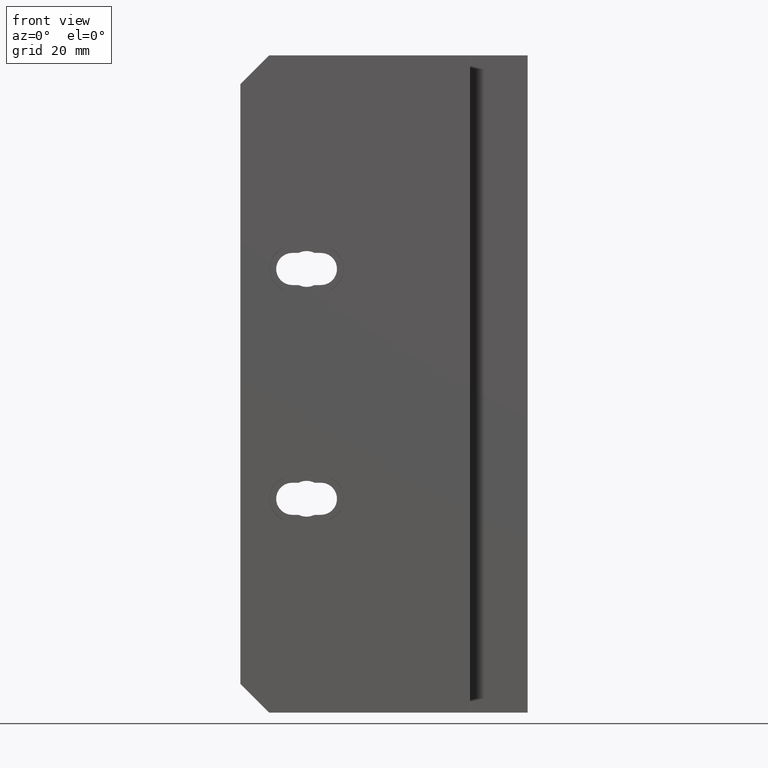
[diagram: clean part render]
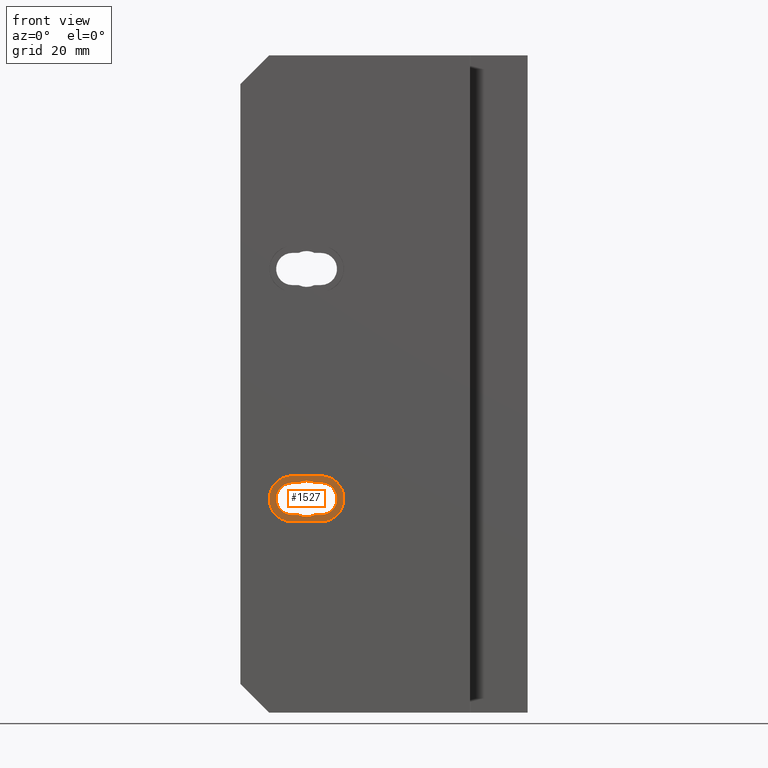
[diagram: same view with one face highlighted and labeled with its STEP entity id]
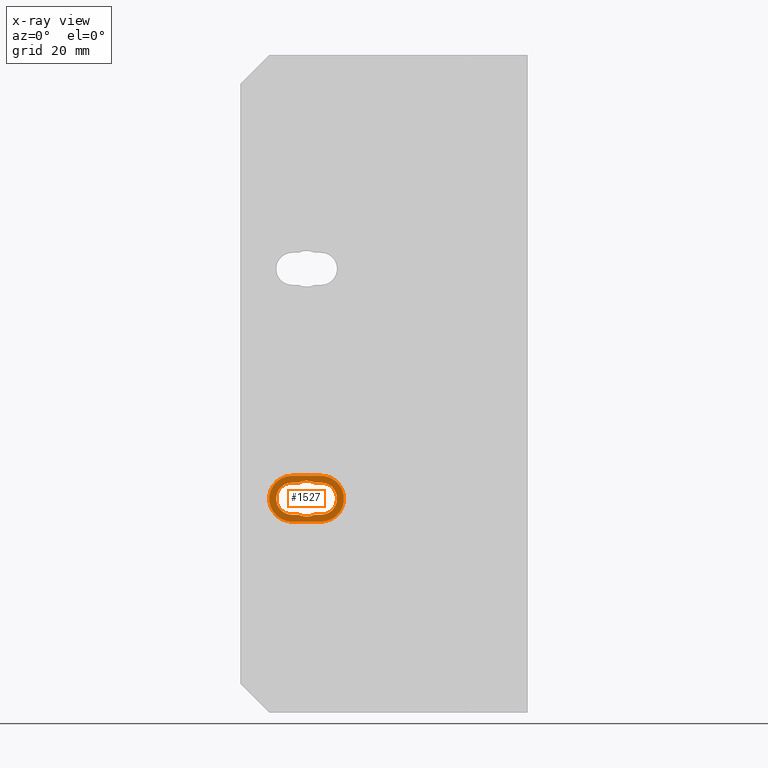
[diagram: x-ray of the same camera — body ghosted, the highlighted face saturated]
A machine part, front view. The second image highlights one B-rep face of the part: STEP entity #1527.
The next image is the same camera in x-ray: the body ghosted, the highlighted face saturated — about 0% of this face is hidden behind the body in this view.
In plain terms, the highlighted planar face has unit normal (0, -1, 0).
Its self-contained STEP definition (entity closure, byte-faithful):
#109 = CIRCLE ( 'NONE', #2467, 0.1562499999999997200 ) ;
#129 = EDGE_CURVE ( 'NONE', #1403, #721, #1073, .T. ) ;
#157 = VERTEX_POINT ( 'NONE', #3232 ) ;
#187 = LINE ( 'NONE', #4050, #2620 ) ;
#201 = PLANE ( 'NONE',  #1438 ) ;
#204 = VECTOR ( 'NONE', #1653, 39.37007874015748100 ) ;
#342 = VERTEX_POINT ( 'NONE', #2900 ) ;
#360 = EDGE_LOOP ( 'NONE', ( #1812, #2740, #3730, #722 ) ) ;
#431 = CARTESIAN_POINT ( 'NONE',  ( -2.048734939028663800, 0.7000000000000000700, -3.998999999999444600 ) ) ;
#502 = VERTEX_POINT ( 'NONE', #1445 ) ;
#515 = DIRECTION ( 'NONE',  ( 0.0000000000000000000, -1.000000000000000000, 0.0000000000000000000 ) ) ;
#531 = DIRECTION ( 'NONE',  ( 0.0000000000000000000, -1.000000000000000000, 0.0000000000000000000 ) ) ;
#642 = AXIS2_PLACEMENT_3D ( 'NONE', #3809, #1826, #4148 ) ;
#645 = DIRECTION ( 'NONE',  ( -0.0000000000000000000, 1.000000000000000000, -0.0000000000000000000 ) ) ;
#671 = EDGE_CURVE ( 'NONE', #2621, #2638, #2574, .T. ) ;
#678 = LINE ( 'NONE', #2452, #2332 ) ;
#721 = VERTEX_POINT ( 'NONE', #4069 ) ;
#722 = ORIENTED_EDGE ( 'NONE', *, *, #129, .T. ) ;
#809 = CARTESIAN_POINT ( 'NONE',  ( -1.798734939028664200, 0.7000000000000000700, -3.858999999999444400 ) ) ;
#834 = CIRCLE ( 'NONE', #3294, 0.2000000000000000400 ) ;
#852 = FACE_BOUND ( 'NONE', #3920, .T. ) ;
#861 = EDGE_CURVE ( 'NONE', #342, #1403, #2476, .T. ) ;
#864 = VERTEX_POINT ( 'NONE', #2297 ) ;
#956 = ORIENTED_EDGE ( 'NONE', *, *, #2977, .T. ) ;
#958 = CARTESIAN_POINT ( 'NONE',  ( -2.048734939028663800, 0.7000000000000000700, -3.998999999999444600 ) ) ;
#974 = CARTESIAN_POINT ( 'NONE',  ( -1.854351493596775500, 0.7000000000000000700, -3.718999999999444300 ) ) ;
#982 = DIRECTION ( 'NONE',  ( 0.0000000000000000000, -1.000000000000000000, 0.0000000000000000000 ) ) ;
#1012 = EDGE_CURVE ( 'NONE', #502, #2638, #1525, .T. ) ;
#1050 = ORIENTED_EDGE ( 'NONE', *, *, #3854, .T. ) ;
#1073 = LINE ( 'NONE', #2982, #204 ) ;
#1086 = EDGE_CURVE ( 'NONE', #2621, #1687, #1428, .T. ) ;
#1145 = DIRECTION ( 'NONE',  ( 0.0000000000000000000, 0.0000000000000000000, -1.000000000000000000 ) ) ;
#1157 = EDGE_CURVE ( 'NONE', #2356, #3482, #2092, .T. ) ;
#1158 = AXIS2_PLACEMENT_3D ( 'NONE', #2082, #4080, #1759 ) ;
#1170 = CARTESIAN_POINT ( 'NONE',  ( -2.048734939028663800, 0.7000000000000000700, -3.858999999999444400 ) ) ;
#1296 = ORIENTED_EDGE ( 'NONE', *, *, #2999, .T. ) ;
#1308 = CARTESIAN_POINT ( 'NONE',  ( -2.048734939028663800, 0.7000000000000000700, -3.858999999999444400 ) ) ;
#1385 = ORIENTED_EDGE ( 'NONE', *, *, #4001, .F. ) ;
#1403 = VERTEX_POINT ( 'NONE', #1437 ) ;
#1428 = LINE ( 'NONE', #431, #2987 ) ;
#1437 = CARTESIAN_POINT ( 'NONE',  ( -1.798734939028664200, 0.7000000000000000700, -3.658999999999444300 ) ) ;
#1438 = AXIS2_PLACEMENT_3D ( 'NONE', #1170, #531, #2852 ) ;
#1445 = CARTESIAN_POINT ( 'NONE',  ( -1.798734939028664200, 0.7000000000000000700, -3.998999999999444600 ) ) ;
#1525 = LINE ( 'NONE', #3063, #3095 ) ;
#1527 = ADVANCED_FACE ( 'NONE', ( #852, #1730 ), #201, .T. ) ;
#1600 = AXIS2_PLACEMENT_3D ( 'NONE', #2972, #982, #3301 ) ;
#1634 = DIRECTION ( 'NONE',  ( 0.0000000000000000000, 0.0000000000000000000, -1.000000000000000000 ) ) ;
#1653 = DIRECTION ( 'NONE',  ( -1.000000000000000000, -0.0000000000000000000, -0.0000000000000000000 ) ) ;
#1687 = VERTEX_POINT ( 'NONE', #958 ) ;
#1695 = LINE ( 'NONE', #2302, #3368 ) ;
#1730 = FACE_OUTER_BOUND ( 'NONE', #360, .T. ) ;
#1740 = DIRECTION ( 'NONE',  ( -1.000000000000000000, 0.0000000000000000000, 0.0000000000000000000 ) ) ;
#1759 = DIRECTION ( 'NONE',  ( 0.0000000000000000000, 0.0000000000000000000, -1.000000000000000000 ) ) ;
#1812 = ORIENTED_EDGE ( 'NONE', *, *, #3254, .T. ) ;
#1826 = DIRECTION ( 'NONE',  ( 0.0000000000000000000, -1.000000000000000000, 0.0000000000000000000 ) ) ;
#1852 = CARTESIAN_POINT ( 'NONE',  ( -1.798734939028664200, 0.7000000000000000700, -3.718999999999444300 ) ) ;
#1958 = AXIS2_PLACEMENT_3D ( 'NONE', #809, #3137, #1145 ) ;
#2045 = DIRECTION ( 'NONE',  ( -1.000000000000000000, 0.0000000000000000000, 0.0000000000000000000 ) ) ;
#2047 = EDGE_CURVE ( 'NONE', #864, #342, #187, .T. ) ;
#2082 = CARTESIAN_POINT ( 'NONE',  ( -1.923734939028664000, 0.7000000000000000700, -3.858999999999444400 ) ) ;
#2088 = CARTESIAN_POINT ( 'NONE',  ( -1.993118384460552500, 0.7000000000000000700, -3.998999999999444600 ) ) ;
#2092 = CIRCLE ( 'NONE', #642, 0.1562499999999997200 ) ;
#2093 = CARTESIAN_POINT ( 'NONE',  ( -1.923734939028664000, 0.7000000000000000700, -3.702749999999444400 ) ) ;
#2209 = ORIENTED_EDGE ( 'NONE', *, *, #4164, .T. ) ;
#2297 = CARTESIAN_POINT ( 'NONE',  ( -2.048734939028663800, 0.7000000000000000700, -4.058999999999444200 ) ) ;
#2302 = CARTESIAN_POINT ( 'NONE',  ( -2.048734939028663800, 0.7000000000000000700, -3.718999999999444300 ) ) ;
#2332 = VECTOR ( 'NONE', #3785, 39.37007874015748100 ) ;
#2356 = VERTEX_POINT ( 'NONE', #974 ) ;
#2452 = CARTESIAN_POINT ( 'NONE',  ( -2.048734939028663800, 0.7000000000000000700, -3.718999999999444300 ) ) ;
#2467 = AXIS2_PLACEMENT_3D ( 'NONE', #2495, #515, #2831 ) ;
#2469 = CARTESIAN_POINT ( 'NONE',  ( -2.048734939028663800, 0.7000000000000000700, -3.718999999999444300 ) ) ;
#2476 = CIRCLE ( 'NONE', #1600, 0.2000000000000000400 ) ;
#2495 = CARTESIAN_POINT ( 'NONE',  ( -1.923734939028664000, 0.7000000000000000700, -3.858999999999444400 ) ) ;
#2574 = CIRCLE ( 'NONE', #1158, 0.1562499999999997200 ) ;
#2620 = VECTOR ( 'NONE', #3718, 39.37007874015748100 ) ;
#2621 = VERTEX_POINT ( 'NONE', #2088 ) ;
#2626 = CARTESIAN_POINT ( 'NONE',  ( -2.048734939028663800, 0.7000000000000000700, -3.858999999999444400 ) ) ;
#2638 = VERTEX_POINT ( 'NONE', #3768 ) ;
#2645 = DIRECTION ( 'NONE',  ( 1.000000000000000000, 0.0000000000000000000, 0.0000000000000000000 ) ) ;
#2740 = ORIENTED_EDGE ( 'NONE', *, *, #2047, .T. ) ;
#2831 = DIRECTION ( 'NONE',  ( 0.0000000000000000000, 0.0000000000000000000, -1.000000000000000000 ) ) ;
#2852 = DIRECTION ( 'NONE',  ( 0.0000000000000000000, -0.0000000000000000000, -1.000000000000000000 ) ) ;
#2862 = ORIENTED_EDGE ( 'NONE', *, *, #1086, .T. ) ;
#2900 = CARTESIAN_POINT ( 'NONE',  ( -1.798734939028664200, 0.7000000000000000700, -4.058999999999444200 ) ) ;
#2964 = DIRECTION ( 'NONE',  ( 0.0000000000000000000, 0.0000000000000000000, -1.000000000000000000 ) ) ;
#2972 = CARTESIAN_POINT ( 'NONE',  ( -1.798734939028664200, 0.7000000000000000700, -3.858999999999444400 ) ) ;
#2977 = EDGE_CURVE ( 'NONE', #2356, #3630, #678, .T. ) ;
#2982 = CARTESIAN_POINT ( 'NONE',  ( -2.048734939028663800, 0.7000000000000000700, -3.658999999999444300 ) ) ;
#2987 = VECTOR ( 'NONE', #1740, 39.37007874015748100 ) ;
#2999 = EDGE_CURVE ( 'NONE', #3630, #502, #3219, .T. ) ;
#3063 = CARTESIAN_POINT ( 'NONE',  ( -2.048734939028663800, 0.7000000000000000700, -3.998999999999444600 ) ) ;
#3095 = VECTOR ( 'NONE', #2045, 39.37007874015748100 ) ;
#3137 = DIRECTION ( 'NONE',  ( -0.0000000000000000000, 1.000000000000000000, -0.0000000000000000000 ) ) ;
#3140 = AXIS2_PLACEMENT_3D ( 'NONE', #2626, #645, #2964 ) ;
#3199 = ORIENTED_EDGE ( 'NONE', *, *, #1012, .T. ) ;
#3219 = CIRCLE ( 'NONE', #1958, 0.1400000000000001500 ) ;
#3232 = CARTESIAN_POINT ( 'NONE',  ( -1.993118384460552500, 0.7000000000000000700, -3.718999999999444300 ) ) ;
#3254 = EDGE_CURVE ( 'NONE', #721, #864, #834, .T. ) ;
#3294 = AXIS2_PLACEMENT_3D ( 'NONE', #1308, #3634, #1634 ) ;
#3301 = DIRECTION ( 'NONE',  ( 0.0000000000000000000, 0.0000000000000000000, -1.000000000000000000 ) ) ;
#3368 = VECTOR ( 'NONE', #2645, 39.37007874015748100 ) ;
#3482 = VERTEX_POINT ( 'NONE', #2093 ) ;
#3630 = VERTEX_POINT ( 'NONE', #1852 ) ;
#3634 = DIRECTION ( 'NONE',  ( 0.0000000000000000000, -1.000000000000000000, 0.0000000000000000000 ) ) ;
#3673 = ORIENTED_EDGE ( 'NONE', *, *, #1157, .F. ) ;
#3718 = DIRECTION ( 'NONE',  ( 1.000000000000000000, 0.0000000000000000000, 0.0000000000000000000 ) ) ;
#3730 = ORIENTED_EDGE ( 'NONE', *, *, #861, .T. ) ;
#3768 = CARTESIAN_POINT ( 'NONE',  ( -1.854351493596775500, 0.7000000000000000700, -3.998999999999444600 ) ) ;
#3785 = DIRECTION ( 'NONE',  ( 1.000000000000000000, 0.0000000000000000000, 0.0000000000000000000 ) ) ;
#3809 = CARTESIAN_POINT ( 'NONE',  ( -1.923734939028664000, 0.7000000000000000700, -3.858999999999444400 ) ) ;
#3854 = EDGE_CURVE ( 'NONE', #3996, #157, #1695, .T. ) ;
#3920 = EDGE_LOOP ( 'NONE', ( #3673, #956, #1296, #3199, #4072, #2862, #2209, #1050, #1385 ) ) ;
#3996 = VERTEX_POINT ( 'NONE', #2469 ) ;
#4001 = EDGE_CURVE ( 'NONE', #3482, #157, #109, .T. ) ;
#4050 = CARTESIAN_POINT ( 'NONE',  ( -2.048734939028663800, 0.7000000000000000700, -4.058999999999444200 ) ) ;
#4069 = CARTESIAN_POINT ( 'NONE',  ( -2.048734939028663800, 0.7000000000000000700, -3.658999999999444300 ) ) ;
#4072 = ORIENTED_EDGE ( 'NONE', *, *, #671, .F. ) ;
#4080 = DIRECTION ( 'NONE',  ( 0.0000000000000000000, -1.000000000000000000, 0.0000000000000000000 ) ) ;
#4148 = DIRECTION ( 'NONE',  ( 0.0000000000000000000, 0.0000000000000000000, -1.000000000000000000 ) ) ;
#4164 = EDGE_CURVE ( 'NONE', #1687, #3996, #4202, .T. ) ;
#4202 = CIRCLE ( 'NONE', #3140, 0.1400000000000001500 ) ;